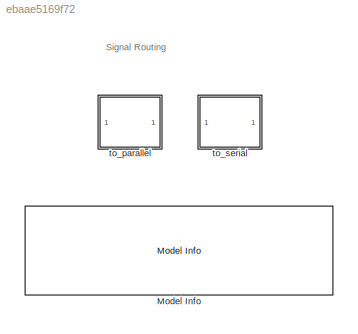
MODEL slx_ebaae5169f72
KIND library
CONFIG AbsTol = auto
CONFIG EnableMultiTasking = on
CONFIG FixedStep = auto
CONFIG MaxStep = auto
CONFIG MinStep = auto
CONFIG RelTol = 1e-3
CONFIG SampleTimeConstraint = Unconstrained
CONFIG Solver = ode45
CONFIG SolverName = ode45
CONFIG StartTime = 0.0
CONFIG StopTime = 10.0
BLOCK [Reference] Model Info  REF=simulink/Model-Wide
Utilities/Model Info
  Ports = []
  SourceBlock = simulink/Model-Wide\nUtilities/Model Info
  SourceProductBaseCode = SL
  SourceProductName = Simulink
  SourceType = CMBlock
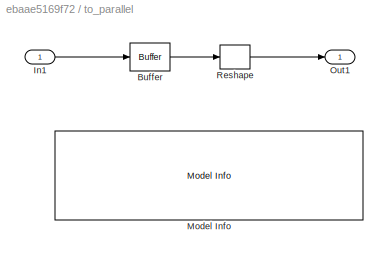
BLOCK [SubSystem] to_parallel
  PermitHierarchicalResolution = None
  Ports = [1, 1]
  RequestExecContextInheritance = off
BLOCK [Buffer] to_parallel/Buffer
  N = P
  OutputFrames = off
BLOCK [Inport] to_parallel/In1
  IconDisplay = Port number
BLOCK [Reference] to_parallel/Model Info  REF=simulink/Model-Wide
Utilities/Model Info
  Ports = []
  SourceBlock = simulink/Model-Wide\nUtilities/Model Info
  SourceProductBaseCode = SL
  SourceProductName = Simulink
  SourceType = CMBlock
BLOCK [Outport] to_parallel/Out1
  IconDisplay = Port number
BLOCK [Reshape] to_parallel/Reshape
  Ports = [1, 1]
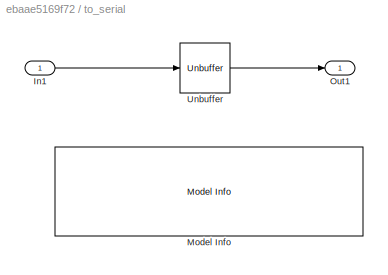
BLOCK [SubSystem] to_serial
  PermitHierarchicalResolution = None
  Ports = [1, 1]
  RequestExecContextInheritance = off
BLOCK [Inport] to_serial/In1
  IconDisplay = Port number
BLOCK [Reference] to_serial/Model Info  REF=simulink/Model-Wide
Utilities/Model Info
  Ports = []
  SourceBlock = simulink/Model-Wide\nUtilities/Model Info
  SourceProductBaseCode = SL
  SourceProductName = Simulink
  SourceType = CMBlock
BLOCK [Outport] to_serial/Out1
  IconDisplay = Port number
BLOCK [Unbuffer] to_serial/Unbuffer
  Ports = [1, 1]
ANNOTATION (root): Signal Routing
LINE to_parallel/Buffer:1 -> to_parallel/Reshape:1
LINE to_parallel/In1:1 -> to_parallel/Buffer:1
LINE to_parallel/Reshape:1 -> to_parallel/Out1:1
LINE to_serial/In1:1 -> to_serial/Unbuffer:1
LINE to_serial/Unbuffer:1 -> to_serial/Out1:1
